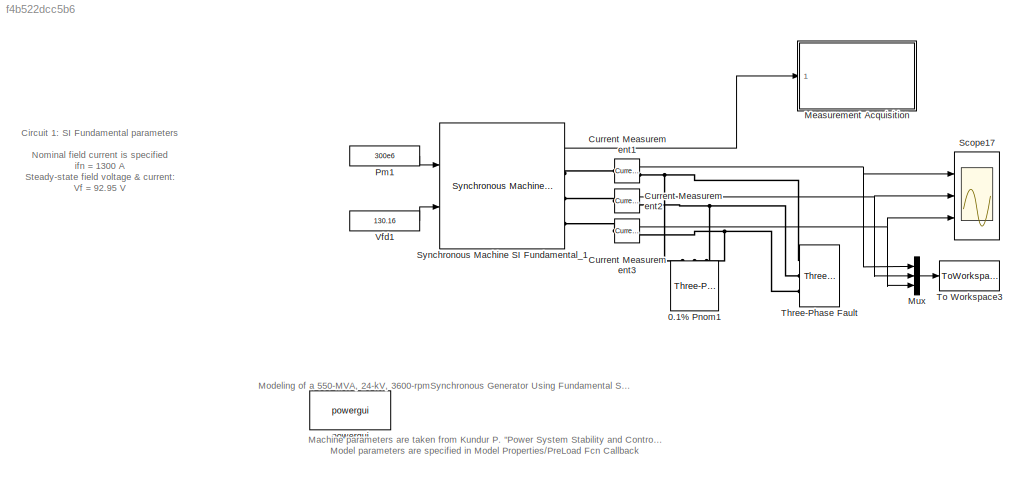
MODEL slx_f4b522dcc5b6
KIND model
CONFIG AbsTol = auto
CONFIG EnableMultiTasking = on
CONFIG FixedStep = 0.00005
CONFIG MaxStep = 200e-6
CONFIG MinStep = auto
CONFIG RelTol = 1e-4
CONFIG SampleTimeConstraint = Unconstrained
CONFIG Solver = FixedStepAuto
CONFIG SolverName = FixedStepAuto
CONFIG StartTime = 0.0
CONFIG StopTime = 0.3
BLOCK [Reference] 0.1% Pnom1  REF=powerlib/Elements/Three-Phase
Series RLC Load
  AttributesFormatString = \n
  Ports = [0, 0, 0, 0, 0, 3]
  SourceBlock = powerlib/Elements/Three-Phase\nSeries RLC Load
  SourceProductBaseCode = PS
  SourceProductName = Simscape Power Systems
  SourceType = Three-Phase Series RLC Load
BLOCK [Reference] Current Measurement1  REF=powerlib/Measurements/Current Measurement
  Ports = [0, 1, 0, 0, 0, 1, 1]
  SourceBlock = powerlib/Measurements/Current Measurement
  SourceProductBaseCode = PS
  SourceProductName = Simscape Power Systems
  SourceType = Current Measurement
  UserDataPersistent = on
BLOCK [Reference] Current Measurement2  REF=powerlib/Measurements/Current Measurement
  Ports = [0, 1, 0, 0, 0, 1, 1]
  SourceBlock = powerlib/Measurements/Current Measurement
  SourceProductBaseCode = PS
  SourceProductName = Simscape Power Systems
  SourceType = Current Measurement
  UserDataPersistent = on
BLOCK [Reference] Current Measurement3  REF=powerlib/Measurements/Current Measurement
  Ports = [0, 1, 0, 0, 0, 1, 1]
  SourceBlock = powerlib/Measurements/Current Measurement
  SourceProductBaseCode = PS
  SourceProductName = Simscape Power Systems
  SourceType = Current Measurement
  UserDataPersistent = on
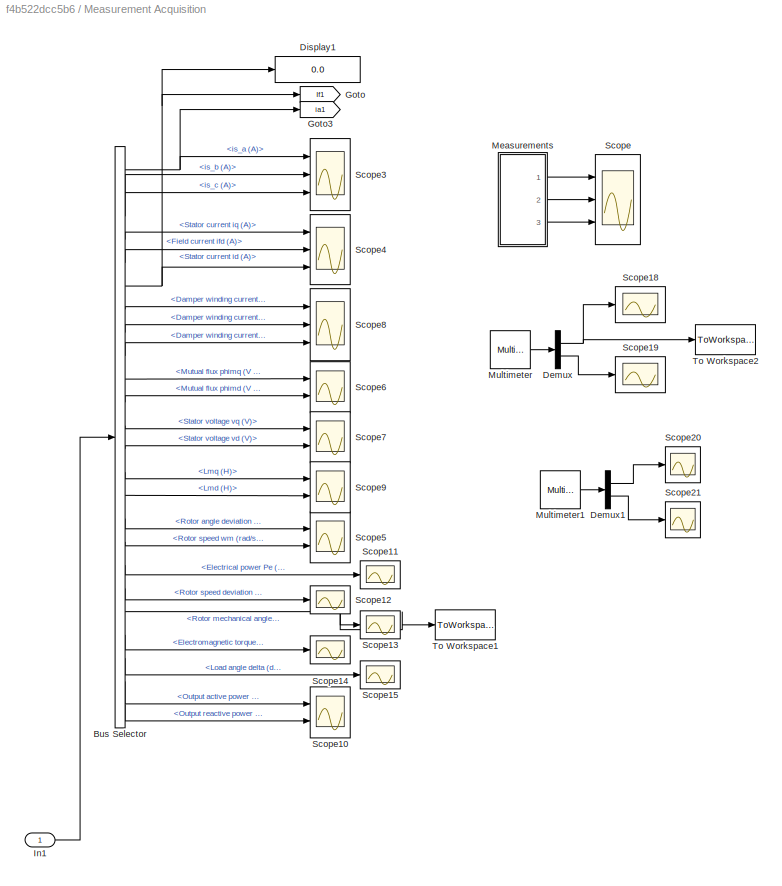
BLOCK [SubSystem] Measurement Acquisition
  Ports = [1]
  RequestExecContextInheritance = off
BLOCK [BusSelector] Measurement Acquisition/Bus Selector
  OutputAsBus = off
  OutputSignals = Stator current.is_a (A),Stator current.is_b (A),Stator current.is_c (A),dq0 components.Stator current  iq (A),dq0 components.Stator current  id (A),dq0 components.Field current  ifd (A),dq0 components.Damper winding current  ikq1 (A),dq0 components.Damper winding current  ikq2 (A),dq0 components.Damper winding current  ikd (A),dq0 components.Mutual flux  phimq (V s),dq0 components.Mutual flux  phi...<+469ch>
  Ports = [1, 24]
BLOCK [Demux] Measurement Acquisition/Demux
  DisplayOption = bar
  Outputs = 2
  Ports = [1, 2]
BLOCK [Demux] Measurement Acquisition/Demux1
  DisplayOption = bar
  Outputs = 2
  Ports = [1, 2]
BLOCK [Display] Measurement Acquisition/Display1
  Decimation = 1
  Ports = [1]
BLOCK [Goto] Measurement Acquisition/Goto
  GotoTag = If1
  TagVisibility = global
BLOCK [Goto] Measurement Acquisition/Goto3
  GotoTag = ia1
  TagVisibility = global
BLOCK [Inport] Measurement Acquisition/In1
  IconDisplay = Port number
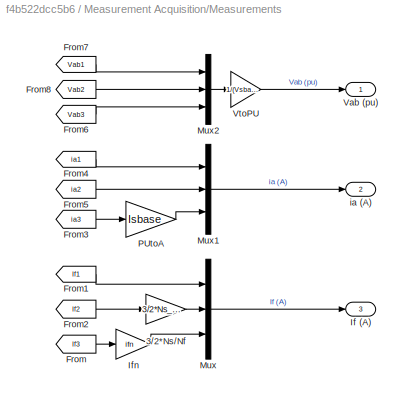
BLOCK [SubSystem] Measurement Acquisition/Measurements
  Ports = [0, 3]
  RequestExecContextInheritance = off
BLOCK [Gain] Measurement Acquisition/Measurements/3//2*Ns//Nf
  Gain = 3/2*Ns_Nf
  OutDataTypeStr = Inherit: Inherit via internal rule
  ParamDataTypeStr = Inherit: Inherit via internal rule
  SaturateOnIntegerOverflow = off
BLOCK [From] Measurement Acquisition/Measurements/From
  GotoTag = If3
BLOCK [From] Measurement Acquisition/Measurements/From1
  GotoTag = If1
  TagVisibility = global
BLOCK [From] Measurement Acquisition/Measurements/From2
  GotoTag = If2
BLOCK [From] Measurement Acquisition/Measurements/From3
  GotoTag = ia3
BLOCK [From] Measurement Acquisition/Measurements/From4
  GotoTag = ia1
  TagVisibility = global
BLOCK [From] Measurement Acquisition/Measurements/From5
  GotoTag = ia2
BLOCK [From] Measurement Acquisition/Measurements/From6
  GotoTag = Vab3
BLOCK [From] Measurement Acquisition/Measurements/From7
  GotoTag = Vab1
BLOCK [From] Measurement Acquisition/Measurements/From8
  GotoTag = Vab2
BLOCK [Outport] Measurement Acquisition/Measurements/If (A)
  IconDisplay = Port number
  Port = 3
BLOCK [Gain] Measurement Acquisition/Measurements/Ifn
  Gain = ifn
  OutDataTypeStr = Inherit: Inherit via internal rule
  ParamDataTypeStr = Inherit: Inherit via internal rule
  SaturateOnIntegerOverflow = off
BLOCK [Mux] Measurement Acquisition/Measurements/Mux
  DisplayOption = bar
  Inputs = 3
  Ports = [3, 1]
BLOCK [Mux] Measurement Acquisition/Measurements/Mux1
  DisplayOption = bar
  Inputs = 3
  Ports = [3, 1]
BLOCK [Mux] Measurement Acquisition/Measurements/Mux2
  DisplayOption = bar
  Inputs = 3
  Ports = [3, 1]
BLOCK [Gain] Measurement Acquisition/Measurements/PUtoA
  Gain = Isbase
  OutDataTypeStr = Inherit: Inherit via internal rule
  ParamDataTypeStr = Inherit: Inherit via internal rule
  SaturateOnIntegerOverflow = off
BLOCK [Outport] Measurement Acquisition/Measurements/Vab (pu)
  IconDisplay = Port number
BLOCK [Gain] Measurement Acquisition/Measurements/VtoPU
  Gain = 1/(Vsbase*sqrt(3))
  OutDataTypeStr = Inherit: Inherit via internal rule
  ParamDataTypeStr = Inherit: Inherit via internal rule
  SaturateOnIntegerOverflow = off
BLOCK [Outport] Measurement Acquisition/Measurements/ia (A)
  IconDisplay = Port number
  Port = 2
BLOCK [Reference] Measurement Acquisition/Multimeter  REF=powerlib/Measurements/Multimeter
  Ports = [0, 1]
  SourceBlock = powerlib/Measurements/Multimeter
  SourceProductBaseCode = PS
  SourceProductName = Simscape Power Systems
  SourceType = MultimeterPSB
BLOCK [Reference] Measurement Acquisition/Multimeter1  REF=powerlib/Measurements/Multimeter
  Ports = [0, 1]
  SourceBlock = powerlib/Measurements/Multimeter
  SourceProductBaseCode = PS
  SourceProductName = Simscape Power Systems
  SourceType = MultimeterPSB
BLOCK [Scope] Measurement Acquisition/Scope
  Floating = off
  NumInputPorts = 3
  Ports = [3]
  ScopeSpecificationString = Simulink.scopes.TimeScopeBlockCfg('CurrentConfiguration', extmgr.ConfigurationSet(extmgr.Configuration('Core','General UI',true),extmgr.Configuration('Core','Source UI',true),extmgr.Configuration('Sources','WiredSimulink',true,'DataLoggingVariableName','ScopeData3','DataLoggingSaveFormat','StructureWithTime','DataLoggingDecimation','1','DataLoggingDecimateData',true),extmgr.Configuration('Visuals'...<+3268ch>
BLOCK [Scope] Measurement Acquisition/Scope10
  Floating = off
  NumInputPorts = 2
  Ports = [2]
  ScopeSpecificationString = Simulink.scopes.TimeScopeBlockCfg('CurrentConfiguration', extmgr.ConfigurationSet(extmgr.Configuration('Core','General UI',true),extmgr.Configuration('Core','Source UI',true),extmgr.Configuration('Sources','WiredSimulink',true,'DataLoggingVariableName','ScopeData8'),extmgr.Configuration('Visuals','Time Domain',true,'SerializedDisplays',{struct('MinYLimReal','-938864446.74953','MaxYLimReal','845534...<+2126ch>
BLOCK [Scope] Measurement Acquisition/Scope11
  Floating = off
  NumInputPorts = 1
  Ports = [1]
  ScopeSpecificationString = Simulink.scopes.TimeScopeBlockCfg('CurrentConfiguration', extmgr.ConfigurationSet(extmgr.Configuration('Core','General UI',true),extmgr.Configuration('Core','Source UI',true),extmgr.Configuration('Sources','WiredSimulink',true,'DataLoggingVariableName','ScopeData9'),extmgr.Configuration('Visuals','Time Domain',true,'SerializedDisplays',{struct('MinYLimReal','554795.30383','MaxYLimReal','555665.063...<+2070ch>
BLOCK [Scope] Measurement Acquisition/Scope12
  Floating = off
  NumInputPorts = 1
  Ports = [1]
  ScopeSpecificationString = Simulink.scopes.TimeScopeBlockCfg('CurrentConfiguration', extmgr.ConfigurationSet(extmgr.Configuration('Core','General UI',true),extmgr.Configuration('Core','Source UI',true),extmgr.Configuration('Sources','WiredSimulink',true,'DataLoggingVariableName','ScopeData10'),extmgr.Configuration('Visuals','Time Domain',true,'SerializedDisplays',{struct('MinYLimReal','-0.000000002','MaxYLimReal','0.0000000...<+2074ch>
BLOCK [Scope] Measurement Acquisition/Scope13
  Floating = off
  NumInputPorts = 1
  Ports = [1]
  ScopeSpecificationString = Simulink.scopes.TimeScopeBlockCfg('CurrentConfiguration', extmgr.ConfigurationSet(extmgr.Configuration('Core','General UI',true),extmgr.Configuration('Core','Source UI',true),extmgr.Configuration('Sources','WiredSimulink',true,'DataLoggingVariableName','ScopeData11'),extmgr.Configuration('Visuals','Time Domain',true,'SerializedDisplays',{struct('MinYLimReal','-113.91898','MaxYLimReal','-47.70201',...<+2113ch>
BLOCK [Scope] Measurement Acquisition/Scope14
  Floating = off
  NumInputPorts = 1
  Ports = [1]
  ScopeSpecificationString = Simulink.scopes.TimeScopeBlockCfg('CurrentConfiguration', extmgr.ConfigurationSet(extmgr.Configuration('Core','General UI',true),extmgr.Configuration('Core','Source UI',true),extmgr.Configuration('Sources','WiredSimulink',true,'DataLoggingVariableName','ScopeData12'),extmgr.Configuration('Visuals','Time Domain',true,'SerializedDisplays',{struct('MinYLimReal','-7902699.04523','MaxYLimReal','9160213...<+2083ch>
BLOCK [Scope] Measurement Acquisition/Scope15
  Floating = off
  NumInputPorts = 1
  Ports = [1]
  ScopeSpecificationString = Simulink.scopes.TimeScopeBlockCfg('CurrentConfiguration', extmgr.ConfigurationSet(extmgr.Configuration('Core','General UI',true),extmgr.Configuration('Core','Source UI',true),extmgr.Configuration('Sources','WiredSimulink',true,'DataLoggingVariableName','ScopeData13'),extmgr.Configuration('Visuals','Time Domain',true,'SerializedDisplays',{struct('MinYLimReal','-190.61532','MaxYLimReal','214.69266',...<+2060ch>
BLOCK [Scope] Measurement Acquisition/Scope18
  Floating = off
  NumInputPorts = 1
  Ports = [1]
  ScopeSpecificationString = Simulink.scopes.TimeScopeBlockCfg('CurrentConfiguration', extmgr.ConfigurationSet(extmgr.Configuration('Core','General UI',true),extmgr.Configuration('Core','Source UI',true),extmgr.Configuration('Sources','WiredSimulink',true,'DataLoggingVariableName','ScopeData1'),extmgr.Configuration('Visuals','Time Domain',true,'SerializedDisplays',{struct('MinYLimReal','-23521.49833','MaxYLimReal','22077.4893...<+1493ch>
BLOCK [Scope] Measurement Acquisition/Scope19
  Floating = off
  NumInputPorts = 1
  Ports = [1]
  ScopeSpecificationString = Simulink.scopes.TimeScopeBlockCfg('CurrentConfiguration', extmgr.ConfigurationSet(extmgr.Configuration('Core','General UI',true),extmgr.Configuration('Core','Source UI',true),extmgr.Configuration('Sources','WiredSimulink',true,'DataLoggingVariableName','ScopeData2'),extmgr.Configuration('Visuals','Time Domain',true,'SerializedDisplays',{struct('MinYLimReal','-26.17293','MaxYLimReal','23.88752','YL...<+1469ch>
BLOCK [Scope] Measurement Acquisition/Scope20
  Floating = off
  NumInputPorts = 1
  Ports = [1]
  ScopeSpecificationString = Simulink.scopes.TimeScopeBlockCfg('CurrentConfiguration', extmgr.ConfigurationSet(extmgr.Configuration('Core','General UI',true),extmgr.Configuration('Core','Source UI',true),extmgr.Configuration('Sources','WiredSimulink',true,'DataLoggingVariableName','ScopeData1'),extmgr.Configuration('Visuals','Time Domain',true,'SerializedDisplays',{struct('MinYLimReal','-23521.49833','MaxYLimReal','22077.4893...<+1496ch>
BLOCK [Scope] Measurement Acquisition/Scope21
  Floating = off
  NumInputPorts = 1
  Ports = [1]
  ScopeSpecificationString = Simulink.scopes.TimeScopeBlockCfg('CurrentConfiguration', extmgr.ConfigurationSet(extmgr.Configuration('Core','General UI',true),extmgr.Configuration('Core','Source UI',true),extmgr.Configuration('Sources','WiredSimulink',true,'DataLoggingVariableName','ScopeData2'),extmgr.Configuration('Visuals','Time Domain',true,'SerializedDisplays',{struct('MinYLimReal','-156005.91587','MaxYLimReal','196003.09...<+1837ch>
BLOCK [Scope] Measurement Acquisition/Scope3
  Floating = off
  NumInputPorts = 3
  Ports = [3]
  ScopeSpecificationString = Simulink.scopes.TimeScopeBlockCfg('CurrentConfiguration', extmgr.ConfigurationSet(extmgr.Configuration('Core','General UI',true),extmgr.Configuration('Core','Source UI',true),extmgr.Configuration('Sources','WiredSimulink',true,'DataLoggingVariableName','ScopeData1'),extmgr.Configuration('Visuals','Time Domain',true,'SerializedDisplays',{struct('MinYLimReal','16.30961','MaxYLimReal','16.37906','YLa...<+1475ch>
BLOCK [Scope] Measurement Acquisition/Scope4
  Floating = off
  NumInputPorts = 3
  Ports = [3]
  ScopeSpecificationString = Simulink.scopes.TimeScopeBlockCfg('CurrentConfiguration', extmgr.ConfigurationSet(extmgr.Configuration('Core','General UI',true),extmgr.Configuration('Core','Source UI',true),extmgr.Configuration('Sources','WiredSimulink',true,'DataLoggingVariableName','ScopeData2'),extmgr.Configuration('Visuals','Time Domain',true,'SerializedDisplays',{struct('MinYLimReal','-104503.54243','MaxYLimReal','107336.88...<+2852ch>
BLOCK [Scope] Measurement Acquisition/Scope5
  Floating = off
  NumInputPorts = 2
  Ports = [2]
  ScopeSpecificationString = Simulink.scopes.TimeScopeBlockCfg('CurrentConfiguration', extmgr.ConfigurationSet(extmgr.Configuration('Core','General UI',true),extmgr.Configuration('Core','Source UI',true),extmgr.Configuration('Sources','WiredSimulink',true,'DataLoggingVariableName','ScopeData3'),extmgr.Configuration('Visuals','Time Domain',true,'SerializedDisplays',{struct('MinYLimReal','-1.7685','MaxYLimReal','-1.54687','YLab...<+2091ch>
BLOCK [Scope] Measurement Acquisition/Scope6
  Floating = off
  NumInputPorts = 2
  Ports = [2]
  ScopeSpecificationString = Simulink.scopes.TimeScopeBlockCfg('CurrentConfiguration', extmgr.ConfigurationSet(extmgr.Configuration('Core','General UI',true),extmgr.Configuration('Core','Source UI',true),extmgr.Configuration('Sources','WiredSimulink',true,'DataLoggingVariableName','ScopeData4'),extmgr.Configuration('Visuals','Time Domain',true,'SerializedDisplays',{struct('MinYLimReal','-32.79254','MaxYLimReal','25.98415','YL...<+2085ch>
BLOCK [Scope] Measurement Acquisition/Scope7
  Floating = off
  NumInputPorts = 2
  Ports = [2]
  ScopeSpecificationString = Simulink.scopes.TimeScopeBlockCfg('CurrentConfiguration', extmgr.ConfigurationSet(extmgr.Configuration('Core','General UI',true),extmgr.Configuration('Core','Source UI',true),extmgr.Configuration('Sources','WiredSimulink',true,'DataLoggingVariableName','ScopeData5'),extmgr.Configuration('Visuals','Time Domain',true,'SerializedDisplays',{struct('MinYLimReal','-3058.50693','MaxYLimReal','24613.25177...<+2098ch>
BLOCK [Scope] Measurement Acquisition/Scope8
  Floating = off
  NumInputPorts = 3
  Ports = [3]
  ScopeSpecificationString = Simulink.scopes.TimeScopeBlockCfg('CurrentConfiguration', extmgr.ConfigurationSet(extmgr.Configuration('Core','General UI',true),extmgr.Configuration('Core','Source UI',true),extmgr.Configuration('Sources','WiredSimulink',true,'DataLoggingVariableName','ScopeData6'),extmgr.Configuration('Visuals','Time Domain',true,'SerializedDisplays',{struct('MinYLimReal','-13184.59574','MaxYLimReal','16286.8917...<+2861ch>
BLOCK [Scope] Measurement Acquisition/Scope9
  Floating = off
  NumInputPorts = 2
  Ports = [2]
  ScopeSpecificationString = Simulink.scopes.TimeScopeBlockCfg('CurrentConfiguration', extmgr.ConfigurationSet(extmgr.Configuration('Core','General UI',true),extmgr.Configuration('Core','Source UI',true),extmgr.Configuration('Sources','WiredSimulink',true,'DataLoggingVariableName','ScopeData7'),extmgr.Configuration('Visuals','Time Domain',true,'SerializedDisplays',{struct('MinYLimReal','0.00343','MaxYLimReal','0.00543','YLabe...<+2043ch>
BLOCK [ToWorkspace] Measurement Acquisition/To Workspace1
  FixptAsFi = on
  MaxDataPoints = inf
  Ports = [1]
  SampleTime = -1
  Save2DSignal = 3-D array (concatenate along third dimension)
  VariableName = theta
BLOCK [ToWorkspace] Measurement Acquisition/To Workspace2
  FixptAsFi = on
  MaxDataPoints = inf
  Ports = [1]
  SampleTime = -1
  Save2DSignal = 3-D array (concatenate along third dimension)
  SaveFormat = Timeseries
  VariableName = voltages
BLOCK [Mux] Mux
  DisplayOption = bar
  Inputs = 3
  Ports = [3, 1]
BLOCK [Constant] Pm1
  Value = 300e6
BLOCK [Scope] Scope17
  Floating = off
  NumInputPorts = 3
  Ports = [3]
  ScopeSpecificationString = Simulink.scopes.TimeScopeBlockCfg('CurrentConfiguration', extmgr.ConfigurationSet(extmgr.Configuration('Core','General UI',true),extmgr.Configuration('Core','Source UI',true),extmgr.Configuration('Sources','WiredSimulink',true,'DataLoggingSaveFormat','StructureWithTime','DataLoggingDecimation','1','DataLoggingDecimateData',true,'DataLoggingVariableName','ScopeData2'),extmgr.Configuration('Visuals'...<+2090ch>
BLOCK [Reference] Synchronous Machine SI Fundamental_1  REF=powerlib/Machines/Synchronous Machine
SI Fundamental
  Ports = [2, 1, 0, 0, 0, 0, 3]
  SourceBlock = powerlib/Machines/Synchronous Machine\nSI Fundamental
  SourceProductBaseCode = PS
  SourceProductName = Simscape Power Systems
  SourceType = Synchronous Machine
BLOCK [Reference] Three-Phase Fault  REF=powerlib/Elements/Three-Phase Fault
  Ports = [0, 0, 0, 0, 0, 3]
  SourceBlock = powerlib/Elements/Three-Phase Fault
  SourceProductBaseCode = PS
  SourceProductName = Simscape Power Systems
  SourceType = Three-Phase Fault
BLOCK [ToWorkspace] To Workspace3
  FixptAsFi = on
  MaxDataPoints = inf
  Ports = [1]
  SampleTime = -1
  Save2DSignal = 3-D array (concatenate along third dimension)
  SaveFormat = Timeseries
  VariableName = currents
BLOCK [Constant] Vfd1
  Value = 130.16
BLOCK [Reference] powergui  REF=powerlib/powergui
  Ports = []
  Priority = 1
  SourceBlock = powerlib/powergui
  SourceProductBaseCode = PS
  SourceProductName = Simscape Power Systems
  SourceType = PSB option menu block
ANNOTATION (root): Circuit 1: SI Fundamental parameters Nominal field current is specified ifn = 1300 A Steady-state field voltage & current: Vf = 92.95 V If = 1300 A Transformation ratio : Ns/Nf = 0.07619
ANNOTATION (root): Machine parameters are taken from Kundur P. "Power System Stability and Control" McGraw-Hill book, 1994 Examples 3.1, 3.2 & 8.1 Model parameters are specified in Model Properties/PreLoad Fcn Callback
ANNOTATION (root): Modeling of a 550-MVA, 24-kV, 3600-rpmSynchronous Generator Using Fundamental SI & PU Parameters
NET Current Measurement1:1 -> Mux:1, Scope17:1
NET Current Measurement2:1 -> Mux:2, Scope17:2
NET Current Measurement3:1 -> Mux:3, Scope17:3
NET Measurement Acquisition/Bus Selector:1 -> Measurement Acquisition/Goto3:1, Measurement Acquisition/Scope3:1
LINE Measurement Acquisition/Bus Selector:10 -> Measurement Acquisition/Scope6:1
LINE Measurement Acquisition/Bus Selector:11 -> Measurement Acquisition/Scope6:2
LINE Measurement Acquisition/Bus Selector:12 -> Measurement Acquisition/Scope7:1
LINE Measurement Acquisition/Bus Selector:13 -> Measurement Acquisition/Scope7:2
LINE Measurement Acquisition/Bus Selector:14 -> Measurement Acquisition/Scope9:1
LINE Measurement Acquisition/Bus Selector:15 -> Measurement Acquisition/Scope9:2
LINE Measurement Acquisition/Bus Selector:16 -> Measurement Acquisition/Scope5:1
LINE Measurement Acquisition/Bus Selector:17 -> Measurement Acquisition/Scope5:2
LINE Measurement Acquisition/Bus Selector:18 -> Measurement Acquisition/Scope11:1
LINE Measurement Acquisition/Bus Selector:19 -> Measurement Acquisition/Scope12:1
LINE Measurement Acquisition/Bus Selector:2 -> Measurement Acquisition/Scope3:2
NET Measurement Acquisition/Bus Selector:20 -> Measurement Acquisition/Scope13:1, Measurement Acquisition/To Workspace1:1
LINE Measurement Acquisition/Bus Selector:21 -> Measurement Acquisition/Scope14:1
LINE Measurement Acquisition/Bus Selector:22 -> Measurement Acquisition/Scope15:1
LINE Measurement Acquisition/Bus Selector:23 -> Measurement Acquisition/Scope10:1
LINE Measurement Acquisition/Bus Selector:24 -> Measurement Acquisition/Scope10:2
LINE Measurement Acquisition/Bus Selector:3 -> Measurement Acquisition/Scope3:3
LINE Measurement Acquisition/Bus Selector:4 -> Measurement Acquisition/Scope4:1
LINE Measurement Acquisition/Bus Selector:5 -> Measurement Acquisition/Scope4:2
NET Measurement Acquisition/Bus Selector:6 -> Measurement Acquisition/Display1:1, Measurement Acquisition/Goto:1, Measurement Acquisition/Scope4:3
LINE Measurement Acquisition/Bus Selector:7 -> Measurement Acquisition/Scope8:1
LINE Measurement Acquisition/Bus Selector:8 -> Measurement Acquisition/Scope8:2
LINE Measurement Acquisition/Bus Selector:9 -> Measurement Acquisition/Scope8:3
LINE Measurement Acquisition/Demux1:1 -> Measurement Acquisition/Scope20:1
LINE Measurement Acquisition/Demux1:2 -> Measurement Acquisition/Scope21:1
NET Measurement Acquisition/Demux:1 -> Measurement Acquisition/Scope18:1, Measurement Acquisition/To Workspace2:1
LINE Measurement Acquisition/Demux:2 -> Measurement Acquisition/Scope19:1
LINE Measurement Acquisition/In1:1 -> Measurement Acquisition/Bus Selector:1
LINE Measurement Acquisition/Measurements/3//2*Ns//Nf:1 -> Measurement Acquisition/Measurements/Mux:2
LINE Measurement Acquisition/Measurements/From1:1 -> Measurement Acquisition/Measurements/Mux:1
LINE Measurement Acquisition/Measurements/From2:1 -> Measurement Acquisition/Measurements/3//2*Ns//Nf:1
LINE Measurement Acquisition/Measurements/From3:1 -> Measurement Acquisition/Measurements/PUtoA:1
LINE Measurement Acquisition/Measurements/From4:1 -> Measurement Acquisition/Measurements/Mux1:1
LINE Measurement Acquisition/Measurements/From5:1 -> Measurement Acquisition/Measurements/Mux1:2
LINE Measurement Acquisition/Measurements/From6:1 -> Measurement Acquisition/Measurements/Mux2:3
LINE Measurement Acquisition/Measurements/From7:1 -> Measurement Acquisition/Measurements/Mux2:1
LINE Measurement Acquisition/Measurements/From8:1 -> Measurement Acquisition/Measurements/Mux2:2
LINE Measurement Acquisition/Measurements/From:1 -> Measurement Acquisition/Measurements/Ifn:1
LINE Measurement Acquisition/Measurements/Ifn:1 -> Measurement Acquisition/Measurements/Mux:3
LINE Measurement Acquisition/Measurements/Mux1:1 -> Measurement Acquisition/Measurements/ia (A):1
LINE Measurement Acquisition/Measurements/Mux2:1 -> Measurement Acquisition/Measurements/VtoPU:1
LINE Measurement Acquisition/Measurements/Mux:1 -> Measurement Acquisition/Measurements/If (A):1
LINE Measurement Acquisition/Measurements/PUtoA:1 -> Measurement Acquisition/Measurements/Mux1:3
LINE Measurement Acquisition/Measurements/VtoPU:1 -> Measurement Acquisition/Measurements/Vab (pu):1
LINE Measurement Acquisition/Measurements:1 -> Measurement Acquisition/Scope:1
LINE Measurement Acquisition/Measurements:2 -> Measurement Acquisition/Scope:2
LINE Measurement Acquisition/Measurements:3 -> Measurement Acquisition/Scope:3
LINE Measurement Acquisition/Multimeter1:1 -> Measurement Acquisition/Demux1:1
LINE Measurement Acquisition/Multimeter:1 -> Measurement Acquisition/Demux:1
LINE Mux:1 -> To Workspace3:1
LINE Pm1:1 -> Synchronous Machine SI Fundamental_1:1
LINE Synchronous Machine SI Fundamental_1:1 -> Measurement Acquisition:1
LINE Vfd1:1 -> Synchronous Machine SI Fundamental_1:2
PNET net1: 0.1% Pnom1:LConn1 -- Current Measurement1:RConn1 -- Three-Phase Fault:LConn1
PNET net2: 0.1% Pnom1:LConn2 -- Current Measurement2:RConn1 -- Three-Phase Fault:LConn2
PNET net3: 0.1% Pnom1:LConn3 -- Current Measurement3:RConn1 -- Three-Phase Fault:LConn3
PLINE Current Measurement1:LConn1 -- Synchronous Machine SI Fundamental_1:RConn1
PLINE Current Measurement2:LConn1 -- Synchronous Machine SI Fundamental_1:RConn2
PLINE Current Measurement3:LConn1 -- Synchronous Machine SI Fundamental_1:RConn3
note: NET lines group one-source signal fan-out (src -> all destinations, sorted); 1:1 wires keep LINE; PNET lines group multi-terminal physical nets as a canonical sorted terminal list (undirected conserving connections); 2-terminal nets keep the pairwise PLINE form
